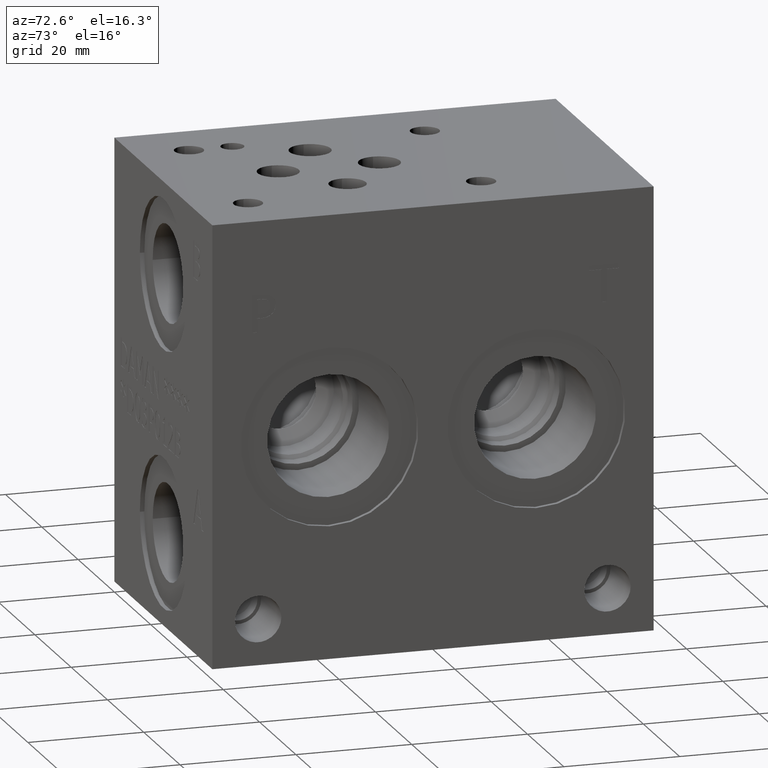
[diagram: clean part render]
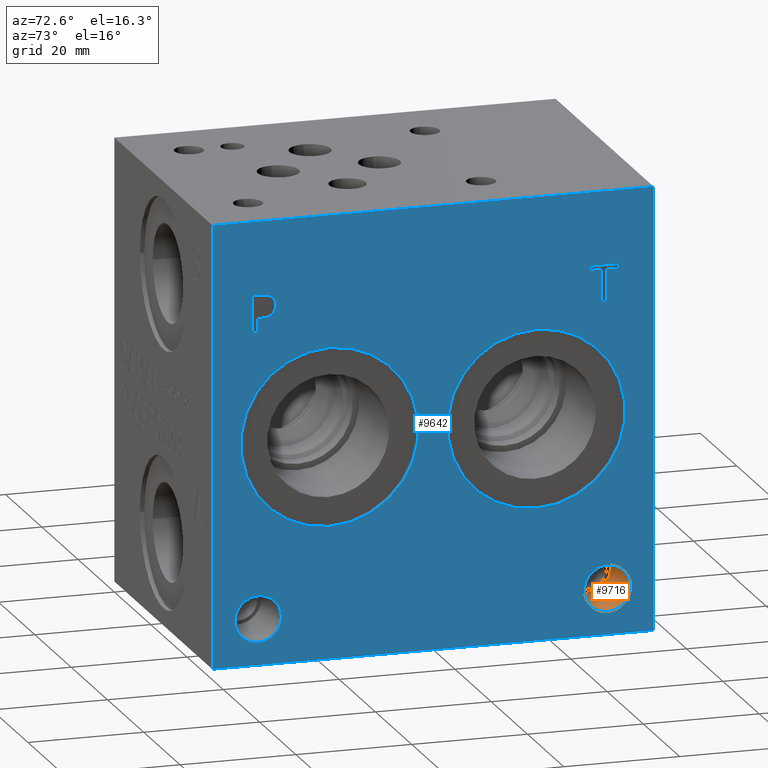
[diagram: same view with the hole feature highlighted: cylindrical wall and planar end face, labeled with their STEP entity ids]
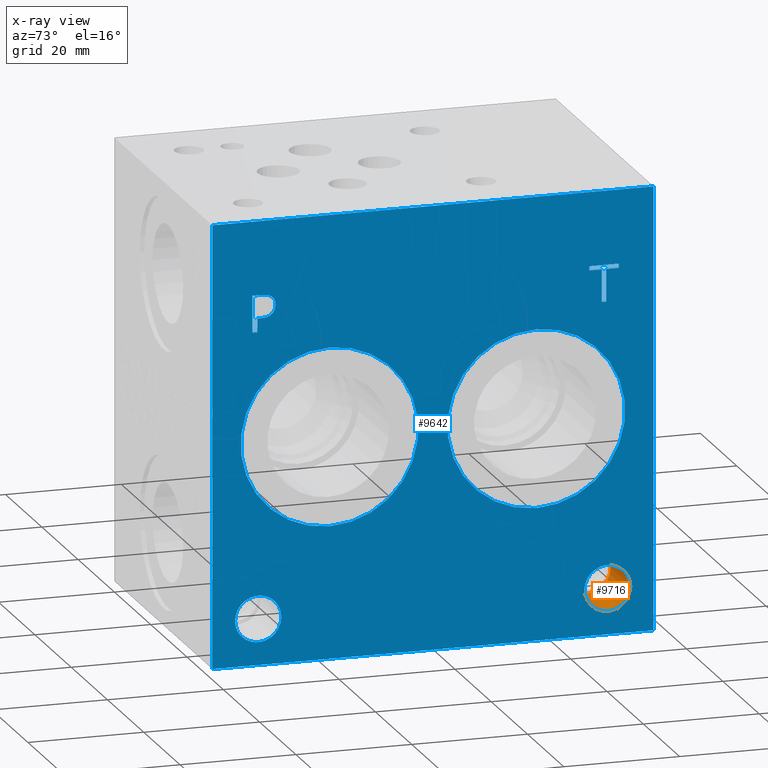
[diagram: x-ray of the same camera — body ghosted, the hole faces saturated]
A machine part, auxiliary view. The highlighted faces form one hole feature of diameter 8.001 mm: the cylindrical wall (entity #9716, orange) and its adjacent planar end face (entity #9642, blue) — they share a circular edge in the B-rep.
The next image is the same camera in x-ray (body ghosted, the hole faces saturated) — the bore reads through the body.
Wall:
#16=CYLINDRICAL_SURFACE('',#10136,4.0005);
#92=CIRCLE('',#10063,4.0005);
#93=CIRCLE('',#10064,4.0005);
#111=CIRCLE('',#10133,4.0005);
#112=CIRCLE('',#10134,4.0005);
#1111=FACE_OUTER_BOUND('',#1660,.T.);
#1660=EDGE_LOOP('',(#8139,#8140,#8141,#8142,#8143,#8144));
#2640=LINE('',#16316,#3571);
#3571=VECTOR('',#11867,4.0005);
#4283=VERTEX_POINT('',#15660);
#4284=VERTEX_POINT('',#15661);
#4406=VERTEX_POINT('',#16309);
#4407=VERTEX_POINT('',#16310);
#5515=EDGE_CURVE('',#4283,#4284,#92,.T.);
#5516=EDGE_CURVE('',#4284,#4283,#93,.T.);
#5700=EDGE_CURVE('',#4406,#4407,#111,.T.);
#5701=EDGE_CURVE('',#4407,#4406,#112,.T.);
#5703=EDGE_CURVE('',#4284,#4407,#2640,.T.);
#8139=ORIENTED_EDGE('',*,*,#5515,.F.);
#8140=ORIENTED_EDGE('',*,*,#5516,.F.);
#8141=ORIENTED_EDGE('',*,*,#5703,.T.);
#8142=ORIENTED_EDGE('',*,*,#5700,.F.);
#8143=ORIENTED_EDGE('',*,*,#5701,.F.);
#8144=ORIENTED_EDGE('',*,*,#5703,.F.);
#9716=ADVANCED_FACE('',(#1111),#16,.F.);
#10063=AXIS2_PLACEMENT_3D('',#15662,#11591,#11592);
#10064=AXIS2_PLACEMENT_3D('',#15663,#11593,#11594);
#10133=AXIS2_PLACEMENT_3D('',#16311,#11859,#11860);
#10134=AXIS2_PLACEMENT_3D('',#16312,#11861,#11862);
#10136=AXIS2_PLACEMENT_3D('',#16315,#11865,#11866);
#11591=DIRECTION('center_axis',(-1.,0.,0.));
#11592=DIRECTION('ref_axis',(0.,1.,0.));
#11593=DIRECTION('center_axis',(-1.,0.,0.));
#11594=DIRECTION('ref_axis',(0.,1.,0.));
#11859=DIRECTION('center_axis',(1.,0.,0.));
#11860=DIRECTION('ref_axis',(0.,1.,0.));
#11861=DIRECTION('center_axis',(1.,0.,0.));
#11862=DIRECTION('ref_axis',(0.,1.,0.));
#11865=DIRECTION('center_axis',(1.,0.,0.));
#11866=DIRECTION('ref_axis',(0.,1.,0.));
#11867=DIRECTION('',(-1.,0.,0.));
#15660=CARTESIAN_POINT('',(53.975,72.2503,7.9248));
#15661=CARTESIAN_POINT('',(53.975,64.2493,7.9248));
#15662=CARTESIAN_POINT('Origin',(53.975,68.2498,7.9248));
#15663=CARTESIAN_POINT('Origin',(53.975,68.2498,7.9248));
#16309=CARTESIAN_POINT('',(42.799,72.2503,7.9248));
#16310=CARTESIAN_POINT('',(42.799,64.2493,7.9248));
#16311=CARTESIAN_POINT('Origin',(42.799,68.2498,7.9248));
#16312=CARTESIAN_POINT('Origin',(42.799,68.2498,7.9248));
#16315=CARTESIAN_POINT('Origin',(48.387,68.2498,7.9248));
#16316=CARTESIAN_POINT('',(48.387,64.2493,7.9248));
End face:
#88=CIRCLE('',#10059,15.3416);
#89=CIRCLE('',#10060,15.3416);
#90=CIRCLE('',#10061,15.3416);
#91=CIRCLE('',#10062,15.3416);
#92=CIRCLE('',#10063,4.0005);
#93=CIRCLE('',#10064,4.0005);
#94=CIRCLE('',#10065,4.0005);
#95=CIRCLE('',#10066,4.0005);
#288=FACE_BOUND('',#1569,.T.);
#289=FACE_BOUND('',#1570,.T.);
#290=FACE_BOUND('',#1571,.T.);
#291=FACE_BOUND('',#1572,.T.);
#292=FACE_BOUND('',#1573,.T.);
#293=FACE_BOUND('',#1574,.T.);
#533=B_SPLINE_CURVE_WITH_KNOTS('',2,(#15549,#15550,#15551,#15552),
 .UNSPECIFIED.,.F.,.F.,(3,1,3),(0.,1.,2.),.UNSPECIFIED.);
#535=B_SPLINE_CURVE_WITH_KNOTS('',2,(#15570,#15571,#15572,#15573),
 .UNSPECIFIED.,.F.,.F.,(3,1,3),(0.,1.,2.),.UNSPECIFIED.);
#537=B_SPLINE_CURVE_WITH_KNOTS('',2,(#15619,#15620,#15621,#15622),
 .UNSPECIFIED.,.F.,.F.,(3,1,3),(0.,1.,2.),.UNSPECIFIED.);
#539=B_SPLINE_CURVE_WITH_KNOTS('',2,(#15637,#15638,#15639,#15640),
 .UNSPECIFIED.,.F.,.F.,(3,1,3),(0.,1.,2.),.UNSPECIFIED.);
#1037=FACE_OUTER_BOUND('',#1568,.T.);
#1568=EDGE_LOOP('',(#7748,#7749,#7750,#7751));
#1569=EDGE_LOOP('',(#7752,#7753,#7754,#7755,#7756,#7757,#7758,#7759));
#1570=EDGE_LOOP('',(#7760,#7761));
#1571=EDGE_LOOP('',(#7762,#7763));
#1572=EDGE_LOOP('',(#7764,#7765));
#1573=EDGE_LOOP('',(#7766,#7767));
#1574=EDGE_LOOP('',(#7768,#7769,#7770,#7771,#7772,#7773,#7774,#7775,#7776));
#2061=LINE('',#14423,#2992);
#2453=LINE('',#15399,#3384);
#2457=LINE('',#15407,#3388);
#2460=LINE('',#15413,#3391);
#2463=LINE('',#15419,#3394);
#2466=LINE('',#15425,#3397);
#2469=LINE('',#15431,#3400);
#2472=LINE('',#15437,#3403);
#2475=LINE('',#15442,#3406);
#2493=LINE('',#15582,#3424);
#2496=LINE('',#15588,#3427);
#2499=LINE('',#15594,#3430);
#2502=LINE('',#15600,#3433);
#2505=LINE('',#15606,#3436);
#2509=LINE('',#15648,#3440);
#2510=LINE('',#15650,#3441);
#2511=LINE('',#15651,#3442);
#2992=VECTOR('',#10806,10.);
#3384=VECTOR('',#11488,10.);
#3388=VECTOR('',#11494,10.);
#3391=VECTOR('',#11499,10.);
#3394=VECTOR('',#11504,10.);
#3397=VECTOR('',#11509,10.);
#3400=VECTOR('',#11514,10.);
#3403=VECTOR('',#11519,10.);
#3406=VECTOR('',#11524,10.);
#3424=VECTOR('',#11552,10.);
#3427=VECTOR('',#11557,10.);
#3430=VECTOR('',#11562,10.);
#3433=VECTOR('',#11567,10.);
#3436=VECTOR('',#11572,10.);
#3440=VECTOR('',#11580,10.);
#3441=VECTOR('',#11581,10.);
#3442=VECTOR('',#11582,10.);
#3942=VERTEX_POINT('',#14420);
#3943=VERTEX_POINT('',#14422);
#4229=VERTEX_POINT('',#15397);
#4230=VERTEX_POINT('',#15398);
#4233=VERTEX_POINT('',#15406);
#4235=VERTEX_POINT('',#15412);
#4237=VERTEX_POINT('',#15418);
#4239=VERTEX_POINT('',#15424);
#4241=VERTEX_POINT('',#15430);
#4243=VERTEX_POINT('',#15436);
#4259=VERTEX_POINT('',#15547);
#4260=VERTEX_POINT('',#15548);
#4263=VERTEX_POINT('',#15569);
#4265=VERTEX_POINT('',#15581);
#4267=VERTEX_POINT('',#15587);
#4269=VERTEX_POINT('',#15593);
#4271=VERTEX_POINT('',#15599);
#4273=VERTEX_POINT('',#15605);
#4275=VERTEX_POINT('',#15618);
#4277=VERTEX_POINT('',#15647);
#4278=VERTEX_POINT('',#15649);
#4279=VERTEX_POINT('',#15652);
#4280=VERTEX_POINT('',#15653);
#4281=VERTEX_POINT('',#15656);
#4282=VERTEX_POINT('',#15657);
#4283=VERTEX_POINT('',#15660);
#4284=VERTEX_POINT('',#15661);
#4285=VERTEX_POINT('',#15664);
#4286=VERTEX_POINT('',#15665);
#5018=EDGE_CURVE('',#3942,#3943,#2061,.T.);
#5436=EDGE_CURVE('',#4229,#4230,#2453,.T.);
#5440=EDGE_CURVE('',#4233,#4229,#2457,.T.);
#5443=EDGE_CURVE('',#4235,#4233,#2460,.T.);
#5446=EDGE_CURVE('',#4237,#4235,#2463,.T.);
#5449=EDGE_CURVE('',#4239,#4237,#2466,.T.);
#5452=EDGE_CURVE('',#4241,#4239,#2469,.T.);
#5455=EDGE_CURVE('',#4243,#4241,#2472,.T.);
#5458=EDGE_CURVE('',#4230,#4243,#2475,.T.);
#5481=EDGE_CURVE('',#4259,#4260,#533,.T.);
#5485=EDGE_CURVE('',#4263,#4259,#535,.T.);
#5488=EDGE_CURVE('',#4265,#4263,#2493,.T.);
#5491=EDGE_CURVE('',#4267,#4265,#2496,.T.);
#5494=EDGE_CURVE('',#4269,#4267,#2499,.T.);
#5497=EDGE_CURVE('',#4271,#4269,#2502,.T.);
#5500=EDGE_CURVE('',#4273,#4271,#2505,.T.);
#5503=EDGE_CURVE('',#4275,#4273,#537,.T.);
#5506=EDGE_CURVE('',#4260,#4275,#539,.T.);
#5508=EDGE_CURVE('',#3942,#4277,#2509,.T.);
#5509=EDGE_CURVE('',#4277,#4278,#2510,.T.);
#5510=EDGE_CURVE('',#3943,#4278,#2511,.T.);
#5511=EDGE_CURVE('',#4279,#4280,#88,.T.);
#5512=EDGE_CURVE('',#4280,#4279,#89,.T.);
#5513=EDGE_CURVE('',#4281,#4282,#90,.T.);
#5514=EDGE_CURVE('',#4282,#4281,#91,.T.);
#5515=EDGE_CURVE('',#4283,#4284,#92,.T.);
#5516=EDGE_CURVE('',#4284,#4283,#93,.T.);
#5517=EDGE_CURVE('',#4285,#4286,#94,.T.);
#5518=EDGE_CURVE('',#4286,#4285,#95,.T.);
#7748=ORIENTED_EDGE('',*,*,#5508,.T.);
#7749=ORIENTED_EDGE('',*,*,#5509,.T.);
#7750=ORIENTED_EDGE('',*,*,#5510,.F.);
#7751=ORIENTED_EDGE('',*,*,#5018,.F.);
#7752=ORIENTED_EDGE('',*,*,#5436,.T.);
#7753=ORIENTED_EDGE('',*,*,#5458,.T.);
#7754=ORIENTED_EDGE('',*,*,#5455,.T.);
#7755=ORIENTED_EDGE('',*,*,#5452,.T.);
#7756=ORIENTED_EDGE('',*,*,#5449,.T.);
#7757=ORIENTED_EDGE('',*,*,#5446,.T.);
#7758=ORIENTED_EDGE('',*,*,#5443,.T.);
#7759=ORIENTED_EDGE('',*,*,#5440,.T.);
#7760=ORIENTED_EDGE('',*,*,#5511,.T.);
#7761=ORIENTED_EDGE('',*,*,#5512,.T.);
#7762=ORIENTED_EDGE('',*,*,#5513,.T.);
#7763=ORIENTED_EDGE('',*,*,#5514,.T.);
#7764=ORIENTED_EDGE('',*,*,#5515,.T.);
#7765=ORIENTED_EDGE('',*,*,#5516,.T.);
#7766=ORIENTED_EDGE('',*,*,#5517,.T.);
#7767=ORIENTED_EDGE('',*,*,#5518,.T.);
#7768=ORIENTED_EDGE('',*,*,#5481,.T.);
#7769=ORIENTED_EDGE('',*,*,#5506,.T.);
#7770=ORIENTED_EDGE('',*,*,#5503,.T.);
#7771=ORIENTED_EDGE('',*,*,#5500,.T.);
#7772=ORIENTED_EDGE('',*,*,#5497,.T.);
#7773=ORIENTED_EDGE('',*,*,#5494,.T.);
#7774=ORIENTED_EDGE('',*,*,#5491,.T.);
#7775=ORIENTED_EDGE('',*,*,#5488,.T.);
#7776=ORIENTED_EDGE('',*,*,#5485,.T.);
#8845=PLANE('',#10058);
#9642=ADVANCED_FACE('',(#1037,#288,#289,#290,#291,#292,#293),#8845,.T.);
#10058=AXIS2_PLACEMENT_3D('',#15646,#11578,#11579);
#10059=AXIS2_PLACEMENT_3D('',#15654,#11583,#11584);
#10060=AXIS2_PLACEMENT_3D('',#15655,#11585,#11586);
#10061=AXIS2_PLACEMENT_3D('',#15658,#11587,#11588);
#10062=AXIS2_PLACEMENT_3D('',#15659,#11589,#11590);
#10063=AXIS2_PLACEMENT_3D('',#15662,#11591,#11592);
#10064=AXIS2_PLACEMENT_3D('',#15663,#11593,#11594);
#10065=AXIS2_PLACEMENT_3D('',#15666,#11595,#11596);
#10066=AXIS2_PLACEMENT_3D('',#15667,#11597,#11598);
#10806=DIRECTION('',(0.,0.,1.));
#11488=DIRECTION('',(0.,-1.,0.));
#11494=DIRECTION('',(0.,0.,-1.));
#11499=DIRECTION('',(0.,-1.,0.));
#11504=DIRECTION('',(0.,0.,-1.));
#11509=DIRECTION('',(0.,1.,0.));
#11514=DIRECTION('',(0.,0.,1.));
#11519=DIRECTION('',(0.,-1.,0.));
#11524=DIRECTION('',(0.,0.,1.));
#11552=DIRECTION('',(0.,1.,0.));
#11557=DIRECTION('',(0.,0.,1.));
#11562=DIRECTION('',(0.,-1.,0.));
#11567=DIRECTION('',(0.,0.,-1.));
#11572=DIRECTION('',(0.,-1.,0.));
#11578=DIRECTION('center_axis',(1.,0.,0.));
#11579=DIRECTION('ref_axis',(0.,1.,0.));
#11580=DIRECTION('',(0.,1.,0.));
#11581=DIRECTION('',(0.,0.,1.));
#11582=DIRECTION('',(0.,1.,0.));
#11583=DIRECTION('center_axis',(-1.,0.,0.));
#11584=DIRECTION('ref_axis',(0.,0.,-1.));
#11585=DIRECTION('center_axis',(-1.,0.,0.));
#11586=DIRECTION('ref_axis',(0.,0.,-1.));
#11587=DIRECTION('center_axis',(-1.,0.,0.));
#11588=DIRECTION('ref_axis',(0.,0.,-1.));
#11589=DIRECTION('center_axis',(-1.,0.,0.));
#11590=DIRECTION('ref_axis',(0.,0.,-1.));
#11591=DIRECTION('center_axis',(-1.,0.,0.));
#11592=DIRECTION('ref_axis',(0.,1.,0.));
#11593=DIRECTION('center_axis',(-1.,0.,0.));
#11594=DIRECTION('ref_axis',(0.,1.,0.));
#11595=DIRECTION('center_axis',(-1.,0.,0.));
#11596=DIRECTION('ref_axis',(0.,1.,0.));
#11597=DIRECTION('center_axis',(-1.,0.,0.));
#11598=DIRECTION('ref_axis',(0.,1.,0.));
#14420=CARTESIAN_POINT('',(53.975,0.,0.));
#14422=CARTESIAN_POINT('',(53.975,0.,76.2));
#14423=CARTESIAN_POINT('',(53.975,0.,0.));
#15397=CARTESIAN_POINT('',(53.975,68.069365271453,57.15));
#15398=CARTESIAN_POINT('',(53.975,67.2254430799135,57.15));
#15399=CARTESIAN_POINT('',(53.975,34.0346826357265,57.15));
#15406=CARTESIAN_POINT('',(53.975,68.069365271453,62.7487033194815));
#15407=CARTESIAN_POINT('',(53.975,68.069365271453,31.3743516597408));
#15412=CARTESIAN_POINT('',(53.975,70.1997542183881,62.7487033194815));
#15413=CARTESIAN_POINT('',(53.975,35.099877109194,62.7487033194815));
#15418=CARTESIAN_POINT('',(53.975,70.1997542183881,63.4999999046326));
#15419=CARTESIAN_POINT('',(53.975,70.1997542183881,31.7499999523163));
#15424=CARTESIAN_POINT('',(53.975,65.0950541329784,63.4999999046326));
#15425=CARTESIAN_POINT('',(53.975,32.5475270664892,63.4999999046326));
#15430=CARTESIAN_POINT('',(53.975,65.0950541329784,62.7487033194815));
#15431=CARTESIAN_POINT('',(53.975,65.0950541329784,31.3743516597408));
#15436=CARTESIAN_POINT('',(53.975,67.2254430799135,62.7487033194815));
#15437=CARTESIAN_POINT('',(53.975,33.6127215399568,62.7487033194815));
#15442=CARTESIAN_POINT('',(53.975,67.2254430799135,28.575));
#15547=CARTESIAN_POINT('',(53.975,10.1743672023594,63.1037681439707));
#15548=CARTESIAN_POINT('',(53.975,10.930809654532,61.5857373726039));
#15549=CARTESIAN_POINT('Ctrl Pts',(53.975,10.1743672023594,63.1037681439707));
#15550=CARTESIAN_POINT('Ctrl Pts',(53.975,10.5294320268486,62.8619123939564));
#15551=CARTESIAN_POINT('Ctrl Pts',(53.975,10.930809654532,62.1157616758269));
#15552=CARTESIAN_POINT('Ctrl Pts',(53.975,10.930809654532,61.5857373726039));
#15569=CARTESIAN_POINT('',(53.975,8.5122521543883,63.4999999046326));
#15570=CARTESIAN_POINT('Ctrl Pts',(53.975,8.5122521543883,63.4999999046326));
#15571=CARTESIAN_POINT('Ctrl Pts',(53.975,9.07829752676236,63.4999999046326));
#15572=CARTESIAN_POINT('Ctrl Pts',(53.975,9.87076104808603,63.3147486918556));
#15573=CARTESIAN_POINT('Ctrl Pts',(53.975,10.1743672023594,63.1037681439707));
#15581=CARTESIAN_POINT('',(53.975,6.91703337769779,63.4999999046326));
#15582=CARTESIAN_POINT('',(53.975,3.45851668884889,63.4999999046326));
#15587=CARTESIAN_POINT('',(53.975,6.91703337769779,57.15));
#15588=CARTESIAN_POINT('',(53.975,6.91703337769779,28.575));
#15593=CARTESIAN_POINT('',(53.975,7.76095556923729,57.15));
#15594=CARTESIAN_POINT('',(53.975,3.88047778461864,57.15));
#15599=CARTESIAN_POINT('',(53.975,7.76095556923729,59.5170988299279));
#15600=CARTESIAN_POINT('',(53.975,7.76095556923729,29.7585494149639));
#15605=CARTESIAN_POINT('',(53.975,8.47623108523723,59.5170988299279));
#15606=CARTESIAN_POINT('',(53.975,4.23811554261861,59.5170988299279));
#15618=CARTESIAN_POINT('',(53.975,10.3750560162011,60.1757698086904));
#15619=CARTESIAN_POINT('Ctrl Pts',(53.975,10.3750560162011,60.1757698086904));
#15620=CARTESIAN_POINT('Ctrl Pts',(53.975,10.0457205268198,59.8515801863307));
#15621=CARTESIAN_POINT('Ctrl Pts',(53.975,9.15548553208609,59.5170988299279));
#15622=CARTESIAN_POINT('Ctrl Pts',(53.975,8.47623108523723,59.5170988299279));
#15637=CARTESIAN_POINT('Ctrl Pts',(53.975,10.930809654532,61.5857373726039));
#15638=CARTESIAN_POINT('Ctrl Pts',(53.975,10.930809654532,61.1740680108774));
#15639=CARTESIAN_POINT('Ctrl Pts',(53.975,10.6374952343018,60.4330631597695));
#15640=CARTESIAN_POINT('Ctrl Pts',(53.975,10.3750560162011,60.1757698086904));
#15646=CARTESIAN_POINT('Origin',(53.975,0.,0.));
#15647=CARTESIAN_POINT('',(53.975,76.2,0.));
#15648=CARTESIAN_POINT('',(53.975,0.,0.));
#15649=CARTESIAN_POINT('',(53.975,76.2,76.2));
#15650=CARTESIAN_POINT('',(53.975,76.2,0.));
#15651=CARTESIAN_POINT('',(53.975,0.,76.2));
#15652=CARTESIAN_POINT('',(53.975,20.2438,22.7584));
#15653=CARTESIAN_POINT('',(53.975,20.2438,53.4416));
#15654=CARTESIAN_POINT('Origin',(53.975,20.2438,38.1));
#15655=CARTESIAN_POINT('Origin',(53.975,20.2438,38.1));
#15656=CARTESIAN_POINT('',(53.975,55.9562,22.7584));
#15657=CARTESIAN_POINT('',(53.975,55.9562,53.4416));
#15658=CARTESIAN_POINT('Origin',(53.975,55.9562,38.1));
#15659=CARTESIAN_POINT('Origin',(53.975,55.9562,38.1));
#15660=CARTESIAN_POINT('',(53.975,72.2503,7.9248));
#15661=CARTESIAN_POINT('',(53.975,64.2493,7.9248));
#15662=CARTESIAN_POINT('Origin',(53.975,68.2498,7.9248));
#15663=CARTESIAN_POINT('Origin',(53.975,68.2498,7.9248));
#15664=CARTESIAN_POINT('',(53.975,11.9253,7.9248));
#15665=CARTESIAN_POINT('',(53.975,3.9243,7.9248));
#15666=CARTESIAN_POINT('Origin',(53.975,7.9248,7.9248));
#15667=CARTESIAN_POINT('Origin',(53.975,7.9248,7.9248));